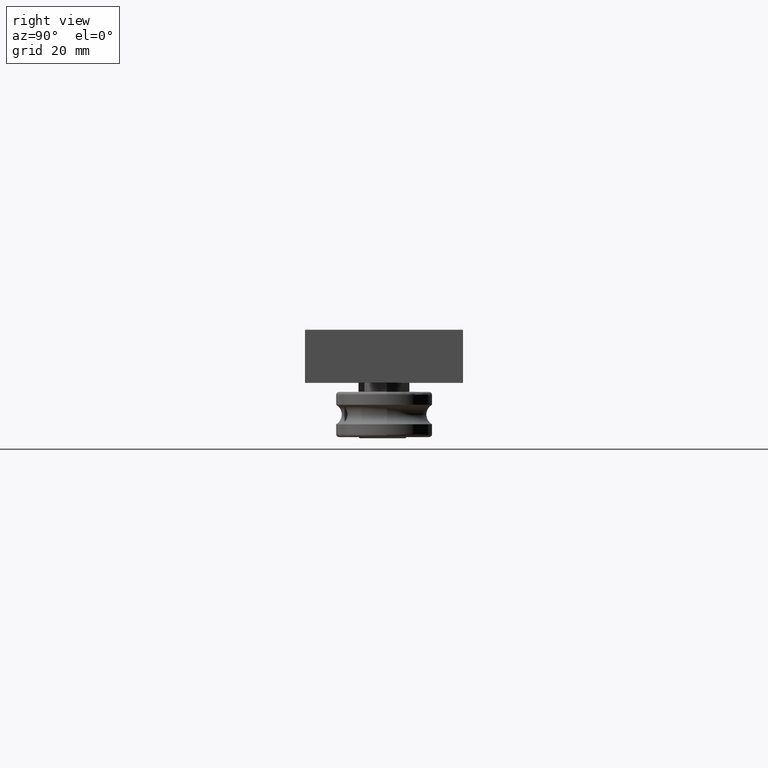
[diagram: clean part render]
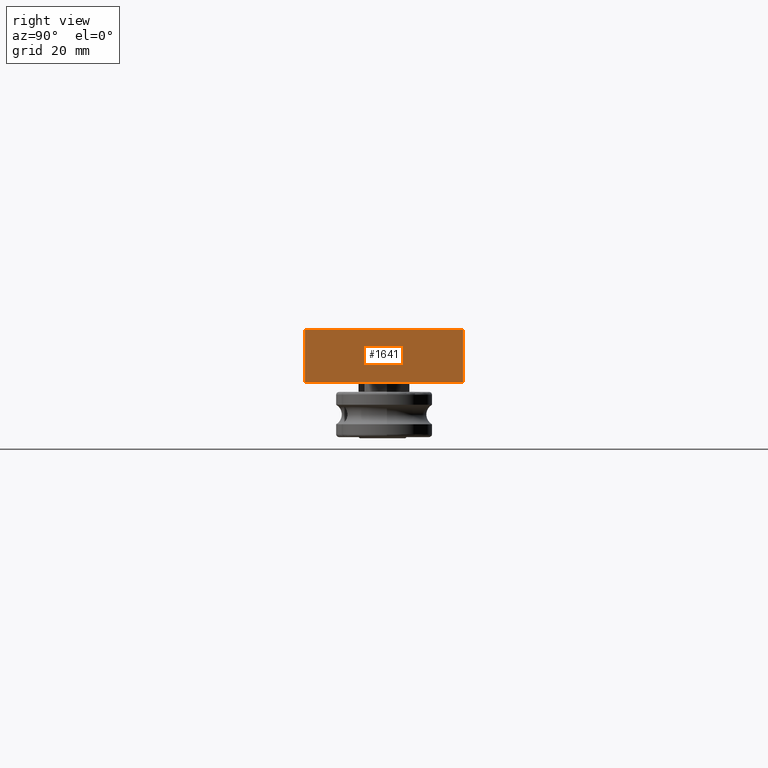
[diagram: same view with one face highlighted and labeled with its STEP entity id]
A machine part, right view. The second image highlights one B-rep face of the part: STEP entity #1641.
In plain terms, the highlighted planar face has unit normal (1, 0, 0).
Its self-contained STEP definition (entity closure, byte-faithful):
#196=PLANE('',#1917);
#265=FACE_OUTER_BOUND('',#382,.T.);
#382=EDGE_LOOP('',(#1244,#1245,#1246,#1247));
#506=LINE('',#2745,#612);
#511=LINE('',#2755,#617);
#512=LINE('',#2758,#618);
#513=LINE('',#2759,#619);
#612=VECTOR('',#2207,10.);
#617=VECTOR('',#2216,10.);
#618=VECTOR('',#2219,10.);
#619=VECTOR('',#2220,10.);
#830=VERTEX_POINT('',#2738);
#833=VERTEX_POINT('',#2743);
#836=VERTEX_POINT('',#2753);
#837=VERTEX_POINT('',#2757);
#988=EDGE_CURVE('',#833,#830,#506,.T.);
#993=EDGE_CURVE('',#836,#833,#511,.T.);
#994=EDGE_CURVE('',#837,#836,#512,.T.);
#995=EDGE_CURVE('',#830,#837,#513,.T.);
#1244=ORIENTED_EDGE('',*,*,#993,.F.);
#1245=ORIENTED_EDGE('',*,*,#994,.F.);
#1246=ORIENTED_EDGE('',*,*,#995,.F.);
#1247=ORIENTED_EDGE('',*,*,#988,.F.);
#1641=ADVANCED_FACE('',(#265),#196,.T.);
#1917=AXIS2_PLACEMENT_3D('',#2756,#2217,#2218);
#2207=DIRECTION('',(0.,-1.,0.));
#2216=DIRECTION('',(0.,0.,-1.));
#2217=DIRECTION('center_axis',(1.,0.,0.));
#2218=DIRECTION('ref_axis',(0.,1.,0.));
#2219=DIRECTION('',(0.,1.,0.));
#2220=DIRECTION('',(0.,0.,1.));
#2738=CARTESIAN_POINT('',(62.5,-14.,-4.7));
#2743=CARTESIAN_POINT('',(62.5,14.,-4.7));
#2745=CARTESIAN_POINT('',(62.5,14.,-4.7));
#2753=CARTESIAN_POINT('',(62.5,14.,4.7));
#2755=CARTESIAN_POINT('',(62.5,14.,0.));
#2756=CARTESIAN_POINT('Origin',(62.5,-14.,0.));
#2757=CARTESIAN_POINT('',(62.5,-14.,4.7));
#2758=CARTESIAN_POINT('',(62.5,14.,4.7));
#2759=CARTESIAN_POINT('',(62.5,-14.,0.));